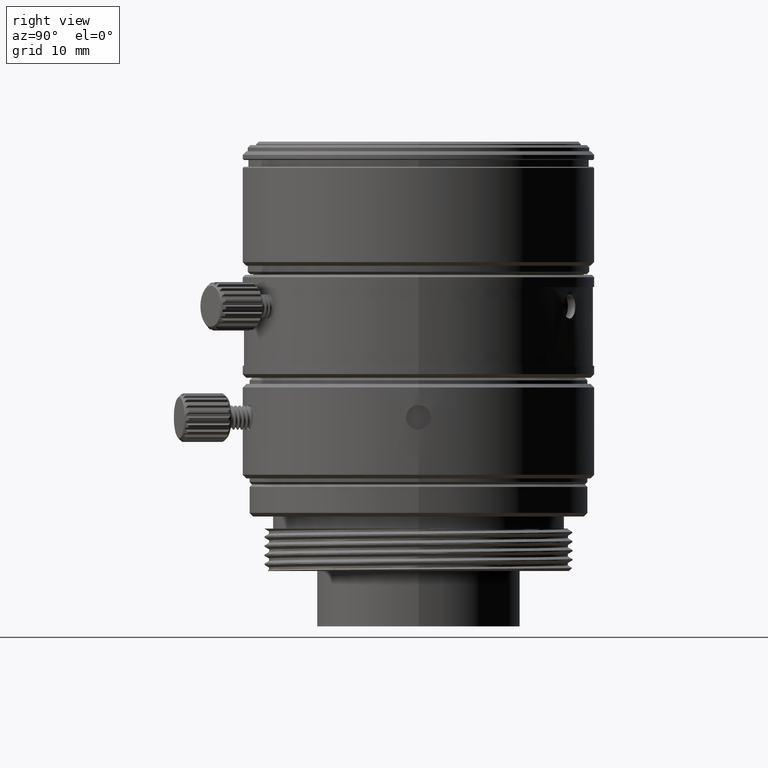
[diagram: clean part render]
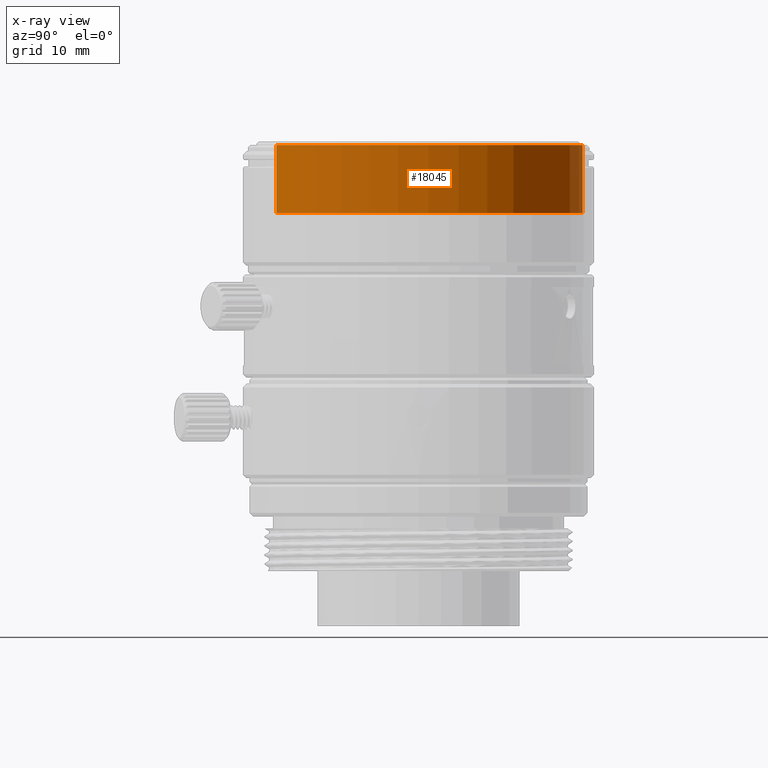
[diagram: x-ray — body ghosted, one internal face saturated and labeled with its STEP entity id]
A machine part, right view, then the same camera in x-ray: the body is ghosted and one INTERNAL B-rep face — a face not visible from any outside direction — is saturated and labeled: STEP entity #18045.
In plain terms, the highlighted cylindrical surface (partial cylindrical patch) has radius 13.55 mm, axis along (0, 0, 1).
Its self-contained STEP definition (entity closure, byte-faithful):
#4559 = EDGE_CURVE ( 'NONE', #35917, #20433, #11453, .T. ) ;
#4584 = CARTESIAN_POINT ( 'NONE',  ( 0.000000000000000000, 0.000000000000000000, -4.560000033359999705 ) ) ;
#5419 = AXIS2_PLACEMENT_3D ( 'NONE', #4584, #19773, #25161 ) ;
#6538 = EDGE_CURVE ( 'NONE', #24494, #33421, #26536, .T. ) ;
#9078 = CARTESIAN_POINT ( 'NONE',  ( 6.786215773336017776, -11.72816988456231257, 33.65000006022999912 ) ) ;
#9252 = CARTESIAN_POINT ( 'NONE',  ( 0.000000000000000000, 0.000000000000000000, 28.04000003514009975 ) ) ;
#10339 = FACE_OUTER_BOUND ( 'NONE', #13019, .T. ) ;
#11453 = LINE ( 'NONE', #32173, #24960 ) ;
#13000 = CIRCLE ( 'NONE', #26516, 13.55000713518000133 ) ;
#13019 = EDGE_LOOP ( 'NONE', ( #34720, #16619, #22869, #29819 ) ) ;
#13728 = AXIS2_PLACEMENT_3D ( 'NONE', #9252, #35940, #18496 ) ;
#16619 = ORIENTED_EDGE ( 'NONE', *, *, #4559, .T. ) ;
#17749 = CARTESIAN_POINT ( 'NONE',  ( 6.786215773336017776, -11.72816988456231257, 28.04000003514009975 ) ) ;
#18027 = CIRCLE ( 'NONE', #13728, 13.55000713517999955 ) ;
#18045 = ADVANCED_FACE ( 'NONE', ( #10339 ), #28030, .F. ) ;
#18496 = DIRECTION ( 'NONE',  ( -1.000000000000000000, 0.000000000000000000, 0.000000000000000000 ) ) ;
#19773 = DIRECTION ( 'NONE',  ( 0.000000000000000000, 0.000000000000000000, 1.000000000000000000 ) ) ;
#20433 = VERTEX_POINT ( 'NONE', #9078 ) ;
#22024 = EDGE_CURVE ( 'NONE', #20433, #33421, #13000, .T. ) ;
#22869 = ORIENTED_EDGE ( 'NONE', *, *, #22024, .T. ) ;
#23842 = DIRECTION ( 'NONE',  ( 0.000000000000000000, 0.000000000000000000, 1.000000000000000000 ) ) ;
#24185 = EDGE_CURVE ( 'NONE', #24494, #35917, #18027, .T. ) ;
#24229 = CARTESIAN_POINT ( 'NONE',  ( 0.000000000000000000, 0.000000000000000000, 33.65000006022999912 ) ) ;
#24494 = VERTEX_POINT ( 'NONE', #36855 ) ;
#24960 = VECTOR ( 'NONE', #34484, 1000.000000000000000 ) ;
#25161 = DIRECTION ( 'NONE',  ( -0.5008274686230171913, 0.8655471371754751564, 0.000000000000000000 ) ) ;
#26516 = AXIS2_PLACEMENT_3D ( 'NONE', #24229, #33041, #35348 ) ;
#26536 = LINE ( 'NONE', #29786, #37302 ) ;
#28030 = CYLINDRICAL_SURFACE ( 'NONE', #5419, 13.55000713517999600 ) ;
#29786 = CARTESIAN_POINT ( 'NONE',  ( -6.786215773336017776, 11.72816988456230725, -4.560000033359999705 ) ) ;
#29819 = ORIENTED_EDGE ( 'NONE', *, *, #6538, .F. ) ;
#32173 = CARTESIAN_POINT ( 'NONE',  ( 6.786215773336015999, -11.72816988456230902, -4.560000033359999705 ) ) ;
#33041 = DIRECTION ( 'NONE',  ( 0.000000000000000000, 0.000000000000000000, 1.000000000000000000 ) ) ;
#33421 = VERTEX_POINT ( 'NONE', #34312 ) ;
#34312 = CARTESIAN_POINT ( 'NONE',  ( -6.786215773336003565, 11.72816988456232146, 33.65000006022999912 ) ) ;
#34484 = DIRECTION ( 'NONE',  ( 0.000000000000000000, 0.000000000000000000, 1.000000000000000000 ) ) ;
#34720 = ORIENTED_EDGE ( 'NONE', *, *, #24185, .T. ) ;
#35348 = DIRECTION ( 'NONE',  ( -0.5008274686230158590, 0.8655471371754758225, 0.000000000000000000 ) ) ;
#35917 = VERTEX_POINT ( 'NONE', #17749 ) ;
#35940 = DIRECTION ( 'NONE',  ( 0.000000000000000000, 0.000000000000000000, -1.000000000000000000 ) ) ;
#36855 = CARTESIAN_POINT ( 'NONE',  ( -6.786215773336019552, 11.72816988456231080, 28.04000003514009975 ) ) ;
#37302 = VECTOR ( 'NONE', #23842, 1000.000000000000000 ) ;